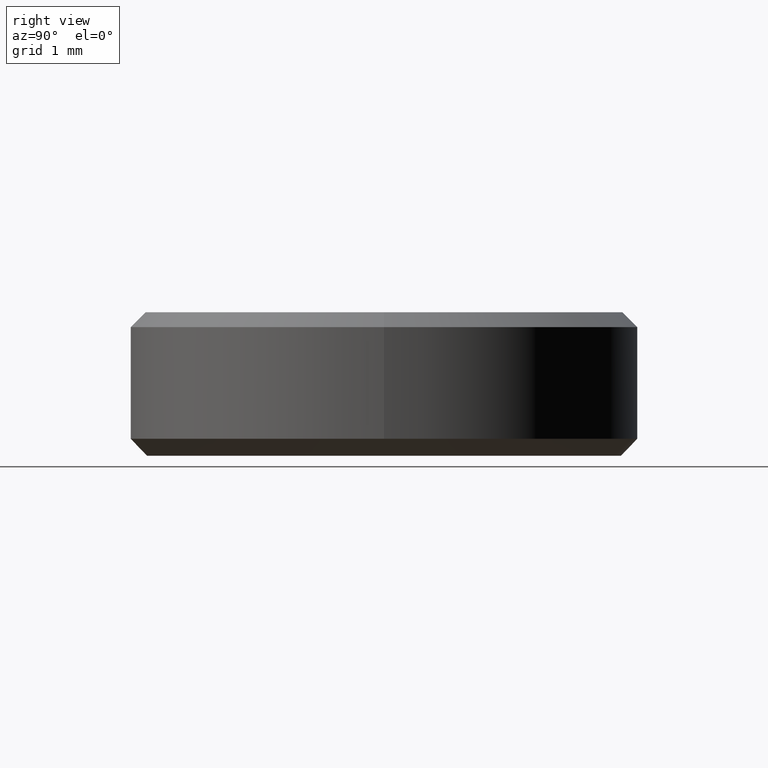
[diagram: clean part render]
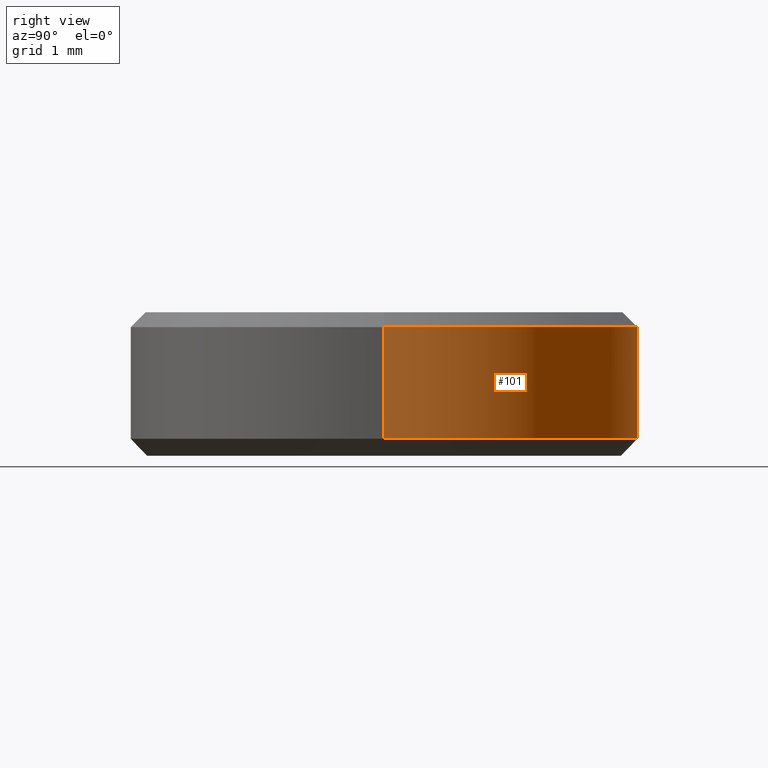
[diagram: same view with one face highlighted and labeled with its STEP entity id]
A machine part, right view. The second image highlights one B-rep face of the part: STEP entity #101.
In plain terms, the highlighted cylindrical surface (partial cylindrical patch) has radius 3 mm, axis along (-0, -0, 1).
Its self-contained STEP definition (entity closure, byte-faithful):
#1 = VECTOR ( 'NONE', #223, 1000.000000000000000 ) ;
#9 = FACE_OUTER_BOUND ( 'NONE', #76, .T. ) ;
#12 = DIRECTION ( 'NONE',  ( 0.000000000000000000, 0.000000000000000000, -1.000000000000000000 ) ) ;
#36 = CARTESIAN_POINT ( 'NONE',  ( 0.000000000000000000, 0.000000000000000000, 1.519999999999993578 ) ) ;
#45 = CYLINDRICAL_SURFACE ( 'NONE', #124, 3.000000000000000000 ) ;
#54 = CARTESIAN_POINT ( 'NONE',  ( -3.000000000000000000, 3.673940397442059868E-16, 1.519999999999993578 ) ) ;
#75 = CARTESIAN_POINT ( 'NONE',  ( 0.000000000000000000, 0.000000000000000000, 0.2000000000000020373 ) ) ;
#76 = EDGE_LOOP ( 'NONE', ( #226, #95, #194, #239 ) ) ;
#95 = ORIENTED_EDGE ( 'NONE', *, *, #205, .T. ) ;
#96 = CARTESIAN_POINT ( 'NONE',  ( -3.000000000000000000, 3.673940397442059868E-16, 0.2000000000000020373 ) ) ;
#101 = ADVANCED_FACE ( 'NONE', ( #9 ), #45, .T. ) ;
#112 = CARTESIAN_POINT ( 'NONE',  ( 3.000000000000000000, 0.000000000000000000, 1.500000000000000000 ) ) ;
#116 = DIRECTION ( 'NONE',  ( -0.000000000000000000, -0.000000000000000000, 1.000000000000000000 ) ) ;
#121 = VERTEX_POINT ( 'NONE', #150 ) ;
#124 = AXIS2_PLACEMENT_3D ( 'NONE', #230, #128, #189 ) ;
#128 = DIRECTION ( 'NONE',  ( -0.000000000000000000, -0.000000000000000000, 1.000000000000000000 ) ) ;
#145 = AXIS2_PLACEMENT_3D ( 'NONE', #75, #240, #217 ) ;
#147 = EDGE_CURVE ( 'NONE', #245, #121, #158, .T. ) ;
#150 = CARTESIAN_POINT ( 'NONE',  ( 3.000000000000000000, 0.000000000000000000, 1.519999999999993578 ) ) ;
#158 = CIRCLE ( 'NONE', #190, 3.000000000000000000 ) ;
#159 = LINE ( 'NONE', #247, #179 ) ;
#173 = VERTEX_POINT ( 'NONE', #182 ) ;
#179 = VECTOR ( 'NONE', #116, 1000.000000000000000 ) ;
#182 = CARTESIAN_POINT ( 'NONE',  ( 3.000000000000000000, 0.000000000000000000, 0.2000000000000020373 ) ) ;
#183 = EDGE_CURVE ( 'NONE', #173, #196, #249, .T. ) ;
#189 = DIRECTION ( 'NONE',  ( 1.000000000000000000, 0.000000000000000000, 0.000000000000000000 ) ) ;
#190 = AXIS2_PLACEMENT_3D ( 'NONE', #36, #12, #244 ) ;
#194 = ORIENTED_EDGE ( 'NONE', *, *, #147, .T. ) ;
#196 = VERTEX_POINT ( 'NONE', #96 ) ;
#205 = EDGE_CURVE ( 'NONE', #196, #245, #159, .T. ) ;
#217 = DIRECTION ( 'NONE',  ( 1.000000000000000000, 0.000000000000000000, 0.000000000000000000 ) ) ;
#223 = DIRECTION ( 'NONE',  ( -0.000000000000000000, -0.000000000000000000, 1.000000000000000000 ) ) ;
#226 = ORIENTED_EDGE ( 'NONE', *, *, #183, .T. ) ;
#230 = CARTESIAN_POINT ( 'NONE',  ( 0.000000000000000000, 0.000000000000000000, 1.500000000000000000 ) ) ;
#239 = ORIENTED_EDGE ( 'NONE', *, *, #253, .F. ) ;
#240 = DIRECTION ( 'NONE',  ( -0.000000000000000000, -0.000000000000000000, 1.000000000000000000 ) ) ;
#244 = DIRECTION ( 'NONE',  ( -1.000000000000000000, 0.000000000000000000, 0.000000000000000000 ) ) ;
#245 = VERTEX_POINT ( 'NONE', #54 ) ;
#247 = CARTESIAN_POINT ( 'NONE',  ( -3.000000000000000000, 3.673940397442059868E-16, 1.500000000000000000 ) ) ;
#249 = CIRCLE ( 'NONE', #145, 3.000000000000000000 ) ;
#253 = EDGE_CURVE ( 'NONE', #173, #121, #264, .T. ) ;
#264 = LINE ( 'NONE', #112, #1 ) ;